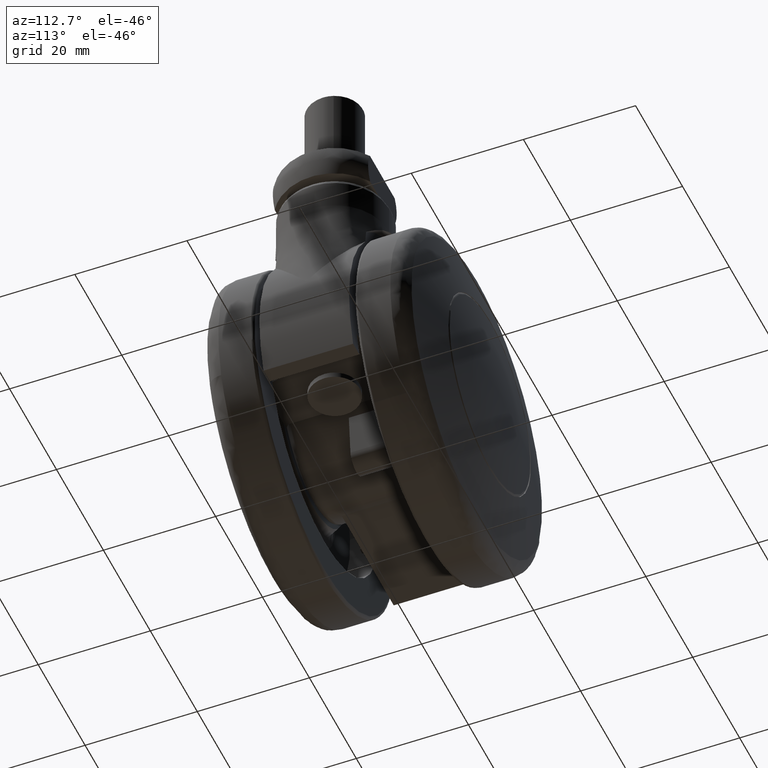
[diagram: clean part render]
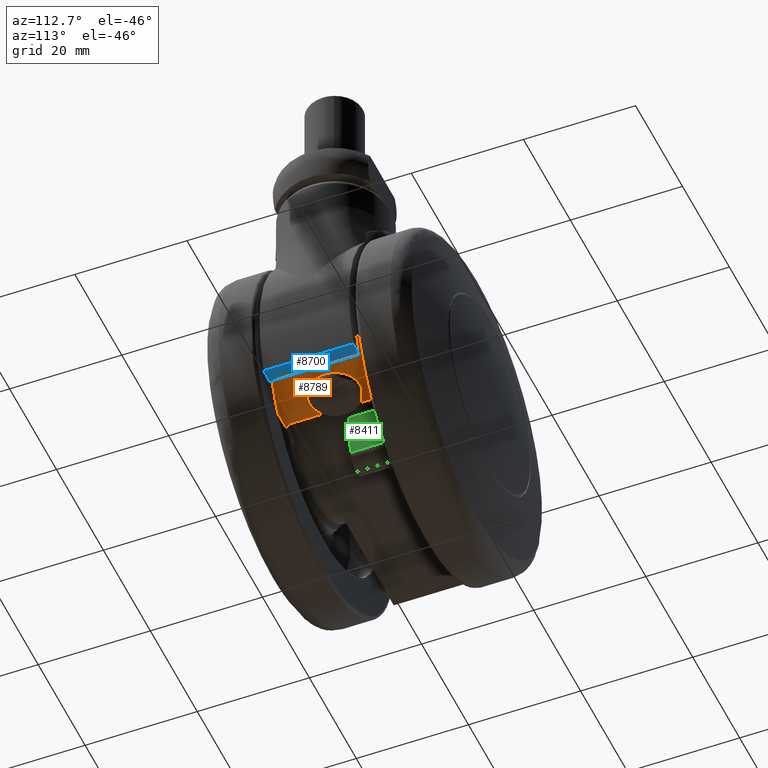
[diagram: same view with three faces highlighted in distinct colors, each labeled with its STEP entity id]
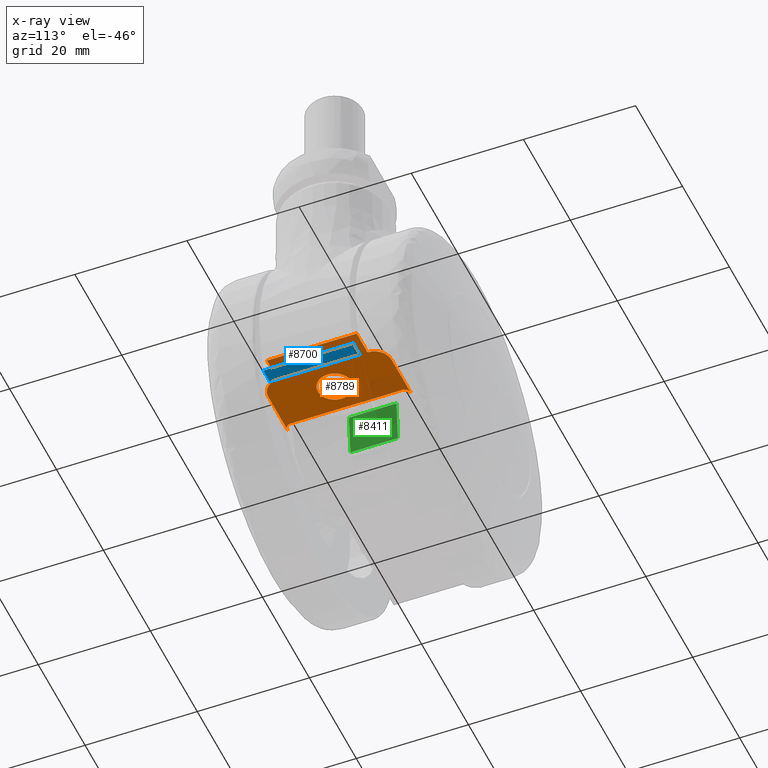
[diagram: x-ray of the same camera — body ghosted, the three highlighted faces saturated]
A machine part, auxiliary view with three faces highlighted in distinct colors.
The next image is the same camera in x-ray (body ghosted, the three faces saturated) — at least one of them is partly hidden behind the body in this view.
Their STEP definitions:

[orange] entity #8789 — the highlighted face is a freeform B-spline surface patch.
#4881=CARTESIAN_POINT('',(16.627615993738420,-2.976798641473852,-6.184658438426480));
#4882=VERTEX_POINT('',#4881);
#4883=CARTESIAN_POINT('',(14.0,0.0,-6.184658438426480));
#4884=VERTEX_POINT('',#4883);
#4885=CARTESIAN_POINT('',(16.627615993738420,-2.976798641473852,-6.184658438426480));
#4886=CARTESIAN_POINT('',(14.000000000000005,-2.648095800411068,-6.184658438426478));
#4887=CARTESIAN_POINT('',(14.0,0.0,-6.184658438426480));
#4895=(BOUNDED_CURVE()B_SPLINE_CURVE(2,(#4885,#4886,#4887),.UNSPECIFIED.,.F.,.U.)B_SPLINE_CURVE_WITH_KNOTS((3,3),(0.771473928973205,1.0),.UNSPECIFIED.)CURVE()GEOMETRIC_REPRESENTATION_ITEM()RATIONAL_B_SPLINE_CURVE((0.954005430269860,0.732265053896681,1.0))REPRESENTATION_ITEM(''));
#4896=EDGE_CURVE('',#4882,#4884,#4895,.T.);
#4898=CARTESIAN_POINT('',(17.026179606906911,2.999885769188920,-6.184658438426480));
#4899=VERTEX_POINT('',#4898);
#4900=CARTESIAN_POINT('',(14.0,0.0,-6.184658438426480));
#4901=CARTESIAN_POINT('',(13.999999999999998,3.0,-6.184658438426479));
#4902=CARTESIAN_POINT('',(17.0,3.0,-6.184658438426480));
#4903=CARTESIAN_POINT('',(17.013090052873913,3.000000000000000,-6.184658438426480));
#4904=CARTESIAN_POINT('',(17.026179606906915,2.999885769188920,-6.184658438426480));
#4912=(BOUNDED_CURVE()B_SPLINE_CURVE(2,(#4900,#4901,#4902,#4903,#4904),.UNSPECIFIED.,.F.,.U.)B_SPLINE_CURVE_WITH_KNOTS((3,2,3),(0.0,0.250000000000000,0.251539894383345),.UNSPECIFIED.)CURVE()GEOMETRIC_REPRESENTATION_ITEM()RATIONAL_B_SPLINE_CURVE((1.0,0.707106781186548,1.0,0.998195901509718,0.996414027988493))REPRESENTATION_ITEM(''));
#4913=EDGE_CURVE('',#4884,#4899,#4912,.T.);
#4984=CARTESIAN_POINT('',(20.0,0.0,-6.184658438426480));
#4985=VERTEX_POINT('',#4984);
#4986=CARTESIAN_POINT('',(20.0,0.0,-6.184658438426480));
#4987=CARTESIAN_POINT('',(19.999999999999996,-3.0,-6.184658438426479));
#4988=CARTESIAN_POINT('',(17.0,-3.0,-6.184658438426480));
#4989=CARTESIAN_POINT('',(16.813085217377164,-3.0,-6.184658438426479));
#4990=CARTESIAN_POINT('',(16.627615993738413,-2.976798641473852,-6.184658438426480));
#4998=(BOUNDED_CURVE()B_SPLINE_CURVE(2,(#4986,#4987,#4988,#4989,#4990),.UNSPECIFIED.,.F.,.U.)B_SPLINE_CURVE_WITH_KNOTS((3,2,3),(0.500000000000000,0.750000000000000,0.771473928973205),.UNSPECIFIED.)CURVE()GEOMETRIC_REPRESENTATION_ITEM()RATIONAL_B_SPLINE_CURVE((1.0,0.707106781186548,1.0,0.974841727289866,0.954005430269860))REPRESENTATION_ITEM(''));
#4999=EDGE_CURVE('',#4985,#4882,#4998,.T.);
#5033=CARTESIAN_POINT('',(17.026179606906911,2.999885769188921,-6.184658438426480));
#5034=CARTESIAN_POINT('',(20.000000000000011,2.973933630968455,-6.184658438426480));
#5035=CARTESIAN_POINT('',(20.0,0.0,-6.184658438426480));
#5043=(BOUNDED_CURVE()B_SPLINE_CURVE(2,(#5033,#5034,#5035),.UNSPECIFIED.,.F.,.U.)B_SPLINE_CURVE_WITH_KNOTS((3,3),(0.251539894383345,0.500000000000000),.UNSPECIFIED.)CURVE()GEOMETRIC_REPRESENTATION_ITEM()RATIONAL_B_SPLINE_CURVE((0.996414027988493,0.708910879676830,1.0))REPRESENTATION_ITEM(''));
#5044=EDGE_CURVE('',#4899,#4985,#5043,.T.);
#7303=CARTESIAN_POINT('',(19.019726653608348,11.0,-6.184658438426480));
#7304=VERTEX_POINT('',#7303);
#7305=CARTESIAN_POINT('',(22.152877968216149,7.999999999999830,-6.184658438426480));
#7306=VERTEX_POINT('',#7305);
#7307=CARTESIAN_POINT('',(19.019726653608348,11.0,-6.184658438426480));
#7308=CARTESIAN_POINT('',(19.222261474939380,11.0,-6.184658438426482));
#7309=CARTESIAN_POINT('',(19.421705478069860,10.981619420149791,-6.184658438426480));
#7310=CARTESIAN_POINT('',(19.716363794227330,10.927242079161710,-6.184658438426481));
#7311=CARTESIAN_POINT('',(19.813826857519221,10.904618260437500,-6.184658438426481));
#7312=CARTESIAN_POINT('',(19.958856457193090,10.863754500003370,-6.184658438426480));
#7313=CARTESIAN_POINT('',(20.007005162848039,10.848976621771110,-6.184658438426481));
#7314=CARTESIAN_POINT('',(20.102904248293129,10.817052087886159,-6.184658438426481));
#7315=CARTESIAN_POINT('',(20.150613468237321,10.799910758452761,-6.184658438426480));
#7316=CARTESIAN_POINT('',(20.385608308858352,10.709176801796930,-6.184658438426481));
#7317=CARTESIAN_POINT('',(20.564367654076221,10.619988890265949,-6.184658438426479));
#7318=CARTESIAN_POINT('',(20.818677148579500,10.461351316932570,-6.184658438426481));
#7319=CARTESIAN_POINT('',(20.901126877232830,10.404302221117529,-6.184658438426481));
#7320=CARTESIAN_POINT('',(21.021175885431390,10.312212339095829,-6.184658438426480));
#7321=CARTESIAN_POINT('',(21.060690808621079,10.280334606906580,-6.184658438426480));
#7322=CARTESIAN_POINT('',(21.137709467598750,10.214998500674360,-6.184658438426481));
#7323=CARTESIAN_POINT('',(21.175266945967099,10.181508278039271,-6.184658438426480));
#7324=CARTESIAN_POINT('',(21.358357877129851,10.010000556919330,-6.184658438426480));
#7325=CARTESIAN_POINT('',(21.489936294693031,9.859929277799624,-6.184658438426479));
#7326=CARTESIAN_POINT('',(21.635441455050429,9.655956526762298,-6.184658438426479));
#7327=CARTESIAN_POINT('',(21.663585584094751,9.614335443408395,-6.184658438426480));
#7328=CARTESIAN_POINT('',(21.717915425777811,9.529401677836585,-6.184658438426481));
#7329=CARTESIAN_POINT('',(21.744175227424190,9.485953927200356,-6.184658438426480));
#7330=CARTESIAN_POINT('',(21.819256010028671,9.354198866863424,-6.184658438426479));
#7331=CARTESIAN_POINT('',(21.864417891814750,9.264514106099519,-6.184658438426481));
#7332=CARTESIAN_POINT('',(21.985577930215801,8.990048000831662,-6.184658438426480));
#7333=CARTESIAN_POINT('',(22.047396938842301,8.799910161549139,-6.184658438426481));
#7334=CARTESIAN_POINT('',(22.099965273864939,8.552904827471229,-6.184658438426481));
#7335=CARTESIAN_POINT('',(22.109237127430561,8.502962793972349,-6.184658438426482));
#7336=CARTESIAN_POINT('',(22.125086691368800,8.403035458266366,-6.184658438426478));
#7337=CARTESIAN_POINT('',(22.131689921024869,8.352948341704956,-6.184658438426478));
#7338=CARTESIAN_POINT('',(22.147553473222821,8.202318375899573,-6.184658438426480));
#7339=CARTESIAN_POINT('',(22.152877968216160,8.101407873538564,-6.184658438426482));
#7340=CARTESIAN_POINT('',(22.152877968216149,7.999999999999830,-6.184658438426480));
#7341=B_SPLINE_CURVE_WITH_KNOTS('',3,(#7307,#7308,#7309,#7310,#7311,#7312,#7313,#7314,#7315,#7316,#7317,#7318,#7319,#7320,#7321,#7322,#7323,#7324,#7325,#7326,#7327,#7328,#7329,#7330,#7331,#7332,#7333,#7334,#7335,#7336,#7337,#7338,#7339,#7340),.UNSPECIFIED.,.F.,.U.,(4,2,2,2,2,2,2,2,2,2,2,2,2,2,2,2,4),(0.0,0.125000000000001,0.187500000000002,0.218750000000001,0.250000000000000,0.374999999999997,0.437499999999995,0.468749999999994,0.499999999999993,0.624999999999994,0.656249999999994,0.687499999999995,0.749999999999995,0.874999999999998,0.906249999999998,0.937499999999999,1.0),.UNSPECIFIED.);
#7342=EDGE_CURVE('',#7304,#7306,#7341,.T.);
#7413=CARTESIAN_POINT('',(22.152877968216149,-8.0,-6.184658438426480));
#7414=VERTEX_POINT('',#7413);
#7415=CARTESIAN_POINT('',(19.019726653608348,-11.0,-6.184658438426480));
#7416=VERTEX_POINT('',#7415);
#7417=CARTESIAN_POINT('',(22.152877968216149,-8.0,-6.184658438426480));
#7418=CARTESIAN_POINT('',(22.152877968216149,-8.202645477881463,-6.184658438426481));
#7419=CARTESIAN_POINT('',(22.131781607124719,-8.401672160233529,-6.184658438426480));
#7420=CARTESIAN_POINT('',(22.069896533579861,-8.695024829354873,-6.184658438426480));
#7421=CARTESIAN_POINT('',(22.044188390263059,-8.791937683875224,-6.184658438426480));
#7422=CARTESIAN_POINT('',(21.997829119805289,-8.935969486201325,-6.184658438426478));
#7423=CARTESIAN_POINT('',(21.981024696651449,-8.983872425954681,-6.184658438426478));
#7424=CARTESIAN_POINT('',(21.945155186866369,-9.078214462194115,-6.184658438426482));
#7425=CARTESIAN_POINT('',(21.926067136639102,-9.124746375995636,-6.184658438426479));
#7426=CARTESIAN_POINT('',(21.824984536975371,-9.354279209638939,-6.184658438426477));
#7427=CARTESIAN_POINT('',(21.726227597586110,-9.527991168119767,-6.184658438426480));
#7428=CARTESIAN_POINT('',(21.551571110689480,-9.773862319300033,-6.184658438426480));
#7429=CARTESIAN_POINT('',(21.488559660375000,-9.853684790361539,-6.184658438426482));
#7430=CARTESIAN_POINT('',(21.356119199646781,-10.005184457863940,-6.184658438426479));
#7431=CARTESIAN_POINT('',(21.216905298556011,-10.149202527056760,-6.184658438426480));
#7432=CARTESIAN_POINT('',(21.064563707729349,-10.278720416713091,-6.184658438426481));
#7433=CARTESIAN_POINT('',(20.945399384580131,-10.370437562730640,-6.184658438426480));
#7434=CARTESIAN_POINT('',(20.904858491178079,-10.400104819275020,-6.184658438426482));
#7435=CARTESIAN_POINT('',(20.822122913972620,-10.457612639456070,-6.184658438426481));
#7436=CARTESIAN_POINT('',(20.779813943509829,-10.485522435008420,-6.184658438426482));
#7437=CARTESIAN_POINT('',(20.565718173097849,-10.619420555143391,-6.184658438426478));
#7438=CARTESIAN_POINT('',(20.386618918550461,-10.708606709695660,-6.184658438426480));
#7439=CARTESIAN_POINT('',(20.106850627580691,-10.816896197885191,-6.184658438426480));
#7440=CARTESIAN_POINT('',(20.011727780274779,-10.848713420980140,-6.184658438426482));
#7441=CARTESIAN_POINT('',(19.866203125077121,-10.889928058389490,-6.184658438426479));
#7442=CARTESIAN_POINT('',(19.817124359266220,-10.902598334462430,-6.184658438426481));
#7443=CARTESIAN_POINT('',(19.718803023761389,-10.925552973037689,-6.184658438426481));
#7444=CARTESIAN_POINT('',(19.669495495921471,-10.935860575928629,-6.184658438426481));
#7445=CARTESIAN_POINT('',(19.422235081077911,-10.981641801482260,-6.184658438426478));
#7446=CARTESIAN_POINT('',(19.222133320471329,-11.0,-6.184658438426479));
#7447=CARTESIAN_POINT('',(19.019726653608348,-11.0,-6.184658438426480));
#7448=B_SPLINE_CURVE_WITH_KNOTS('',3,(#7417,#7418,#7419,#7420,#7421,#7422,#7423,#7424,#7425,#7426,#7427,#7428,#7429,#7430,#7431,#7432,#7433,#7434,#7435,#7436,#7437,#7438,#7439,#7440,#7441,#7442,#7443,#7444,#7445,#7446,#7447),.UNSPECIFIED.,.F.,.U.,(4,2,2,2,2,2,2,1,2,2,2,2,2,2,2,4),(0.0,0.125000000000000,0.187499999999999,0.218749999999999,0.249999999999999,0.374999999999997,0.437499999999996,0.499999999999995,0.562499999999995,0.593749999999995,0.624999999999995,0.749999999999997,0.812499999999998,0.843749999999998,0.874999999999999,1.0),.UNSPECIFIED.);
#7449=EDGE_CURVE('',#7414,#7416,#7448,.T.);
#7547=CARTESIAN_POINT('',(10.862780491200221,11.0,-6.184658438426480));
#7548=VERTEX_POINT('',#7547);
#7566=CARTESIAN_POINT('',(12.0,10.0,-6.184658438426480));
#7567=VERTEX_POINT('',#7566);
#7568=CARTESIAN_POINT('',(12.0,10.0,-6.184658438426480));
#7569=CARTESIAN_POINT('',(12.0,10.070766424093581,-6.184658438426481));
#7570=CARTESIAN_POINT('',(11.991646831965520,10.140072858277509,-6.184658438426480));
#7571=CARTESIAN_POINT('',(11.967261777288680,10.241960406832940,-6.184658438426480));
#7572=CARTESIAN_POINT('',(11.957115685662311,10.275640586512971,-6.184658438426480));
#7573=CARTESIAN_POINT('',(11.932847750679530,10.342011889151660,-6.184658438426479));
#7574=CARTESIAN_POINT('',(11.918919750672041,10.374199228764670,-6.184658438426478));
#7575=CARTESIAN_POINT('',(11.887683366589270,10.436692851233641,-6.184658438426479));
#7576=CARTESIAN_POINT('',(11.870374138278040,10.466998664304000,-6.184658438426480));
#7577=CARTESIAN_POINT('',(11.832462431118920,10.525777720224781,-6.184658438426479));
#7578=CARTESIAN_POINT('',(11.811786088071299,10.554340578955170,-6.184658438426478));
#7579=CARTESIAN_POINT('',(11.745284759587070,10.636670061212911,-6.184658438426479));
#7580=CARTESIAN_POINT('',(11.695901204951200,10.686127759392180,-6.184658438426481));
#7581=CARTESIAN_POINT('',(11.587971155286340,10.775191928691269,-6.184658438426480));
#7582=CARTESIAN_POINT('',(11.528980269925430,10.814909996160971,-6.184658438426480));
#7583=CARTESIAN_POINT('',(11.406411074269601,10.882180380946981,-6.184658438426480));
#7584=CARTESIAN_POINT('',(11.342416249479800,10.910162266330371,-6.184658438426481));
#7585=CARTESIAN_POINT('',(11.242532096912180,10.944016884076770,-6.184658438426481));
#7586=CARTESIAN_POINT('',(11.208590994442799,10.953920165975630,-6.184658438426480));
#7587=CARTESIAN_POINT('',(11.140562938480670,10.970736591620460,-6.184658438426479));
#7588=CARTESIAN_POINT('',(11.106333579841360,10.977701641025600,-6.184658438426480));
#7589=CARTESIAN_POINT('',(11.003020808552710,10.994410030544710,-6.184658438426478));
#7590=CARTESIAN_POINT('',(10.933317682274859,11.0,-6.184658438426478));
#7591=CARTESIAN_POINT('',(10.862780491200221,11.0,-6.184658438426480));
#7592=B_SPLINE_CURVE_WITH_KNOTS('',3,(#7568,#7569,#7570,#7571,#7572,#7573,#7574,#7575,#7576,#7577,#7578,#7579,#7580,#7581,#7582,#7583,#7584,#7585,#7586,#7587,#7588,#7589,#7590,#7591),.UNSPECIFIED.,.F.,.U.,(4,2,2,2,2,2,2,2,2,2,2,4),(0.0,0.125000000000000,0.187500000000000,0.250000000000000,0.312499999999999,0.374999999999999,0.500000000000000,0.625000000000000,0.750000000000000,0.812500000000000,0.875000000000000,1.0),.UNSPECIFIED.);
#7593=EDGE_CURVE('',#7567,#7548,#7592,.T.);
#7661=CARTESIAN_POINT('',(12.0,-10.0,-6.184658438426480));
#7662=VERTEX_POINT('',#7661);
#7680=CARTESIAN_POINT('',(10.862780491200221,-11.0,-6.184658438426480));
#7681=VERTEX_POINT('',#7680);
#7682=CARTESIAN_POINT('',(10.862780491200221,-11.0,-6.184658438426480));
#7683=CARTESIAN_POINT('',(10.933447379370660,-11.0,-6.184658438426480));
#7684=CARTESIAN_POINT('',(11.003179586017280,-10.994389643849590,-6.184658438426480));
#7685=CARTESIAN_POINT('',(11.140803528951480,-10.972121645456690,-6.184658438426479));
#7686=CARTESIAN_POINT('',(11.208696252014070,-10.955469926257621,-6.184658438426479));
#7687=CARTESIAN_POINT('',(11.342480693863290,-10.910155608901780,-6.184658438426479));
#7688=CARTESIAN_POINT('',(11.406684318586370,-10.882026995570881,-6.184658438426479));
#7689=CARTESIAN_POINT('',(11.528619340397650,-10.815111503878009,-6.184658438426479));
#7690=CARTESIAN_POINT('',(11.586529567844281,-10.776279376867929,-6.184658438426480));
#7691=CARTESIAN_POINT('',(11.668253258106160,-10.708992707533060,-6.184658438426479));
#7692=CARTESIAN_POINT('',(11.694455807663360,-10.685160954078510,-6.184658438426478));
#7693=CARTESIAN_POINT('',(11.743797024357161,-10.635535892234520,-6.184658438426479));
#7694=CARTESIAN_POINT('',(11.767084306086200,-10.609623847496040,-6.184658438426480));
#7695=CARTESIAN_POINT('',(11.832724493453799,-10.528532199809529,-6.184658438426480));
#7696=CARTESIAN_POINT('',(11.871005287678379,-10.469855514942619,-6.184658438426481));
#7697=CARTESIAN_POINT('',(11.934515128339109,-10.343199226832910,-6.184658438426481));
#7698=CARTESIAN_POINT('',(11.958591140050890,-10.277595461487740,-6.184658438426481));
#7699=CARTESIAN_POINT('',(11.983171242381980,-10.175771772654979,-6.184658438426478));
#7700=CARTESIAN_POINT('',(11.989427402039000,-10.141256457389170,-6.184658438426479));
#7701=CARTESIAN_POINT('',(11.997862790405390,-10.071017640730551,-6.184658438426481));
#7702=CARTESIAN_POINT('',(12.0,-10.035498820624520,-6.184658438426479));
#7703=CARTESIAN_POINT('',(12.0,-10.0,-6.184658438426480));
#7704=B_SPLINE_CURVE_WITH_KNOTS('',3,(#7682,#7683,#7684,#7685,#7686,#7687,#7688,#7689,#7690,#7691,#7692,#7693,#7694,#7695,#7696,#7697,#7698,#7699,#7700,#7701,#7702,#7703),.UNSPECIFIED.,.F.,.U.,(4,2,2,2,2,2,2,2,2,2,4),(0.0,0.124999999999999,0.249999999999999,0.374999999999998,0.499999999999998,0.562499999999999,0.625000000000000,0.750000000000000,0.874999999999999,0.937500000000000,1.0),.UNSPECIFIED.);
#7705=EDGE_CURVE('',#7681,#7662,#7704,.T.);
#8626=CARTESIAN_POINT('',(19.019726653608348,-11.0,-6.184658438426480));
#8627=CARTESIAN_POINT('',(10.862780491200221,-11.0,-6.184658438426480));
#8628=QUASI_UNIFORM_CURVE('',1,(#8626,#8627),.UNSPECIFIED.,.F.,.U.);
#8629=EDGE_CURVE('',#7416,#7681,#8628,.T.);
#8650=CARTESIAN_POINT('',(19.019726653608348,11.0,-6.184658438426480));
#8651=CARTESIAN_POINT('',(10.862780491200221,11.0,-6.184658438426480));
#8652=QUASI_UNIFORM_CURVE('',1,(#8650,#8651),.UNSPECIFIED.,.F.,.U.);
#8653=EDGE_CURVE('',#7304,#7548,#8652,.T.);
#8716=CARTESIAN_POINT('',(26.795522013948549,-8.0,-6.184658438426480));
#8717=VERTEX_POINT('',#8716);
#8731=CARTESIAN_POINT('',(26.795522013948549,7.999999999999789,-6.184658438426480));
#8732=VERTEX_POINT('',#8731);
#8733=CARTESIAN_POINT('',(26.795522013948549,7.999999999999789,-6.184658438426480));
#8734=CARTESIAN_POINT('',(26.795522013948549,-8.0,-6.184658438426480));
#8735=QUASI_UNIFORM_CURVE('',1,(#8733,#8734),.UNSPECIFIED.,.F.,.U.);
#8736=EDGE_CURVE('',#8732,#8717,#8735,.T.);
#8754=CARTESIAN_POINT('',(27.591363169954981,-12.098899957359730,-6.184658438426480));
#8755=CARTESIAN_POINT('',(10.066939620093420,-12.098899957359730,-6.184658438426480));
#8756=CARTESIAN_POINT('',(27.591363169954981,12.098900547445711,-6.184658438426480));
#8757=CARTESIAN_POINT('',(10.066939620093420,12.098900547445711,-6.184658438426480));
#8758=B_SPLINE_SURFACE_WITH_KNOTS('',1,1,((#8754,#8756),(#8755,#8757)),.UNSPECIFIED.,.F.,.F.,.U.,(2,2),(2,2),(0.0,17.524423549861559),(0.0,24.197800504805450),.UNSPECIFIED.);
#8759=CARTESIAN_POINT('',(26.795522013948549,-8.0,-6.184658438426480));
#8760=CARTESIAN_POINT('',(22.152877968216149,-8.0,-6.184658438426480));
#8761=QUASI_UNIFORM_CURVE('',1,(#8759,#8760),.UNSPECIFIED.,.F.,.U.);
#8762=EDGE_CURVE('',#8717,#7414,#8761,.T.);
#8763=ORIENTED_EDGE('',*,*,#8762,.T.);
#8764=ORIENTED_EDGE('',*,*,#7449,.T.);
#8765=ORIENTED_EDGE('',*,*,#8629,.T.);
#8766=ORIENTED_EDGE('',*,*,#7705,.T.);
#8767=CARTESIAN_POINT('',(12.0,10.0,-6.184658438426480));
#8768=CARTESIAN_POINT('',(12.0,-10.0,-6.184658438426480));
#8769=QUASI_UNIFORM_CURVE('',1,(#8767,#8768),.UNSPECIFIED.,.F.,.U.);
#8770=EDGE_CURVE('',#7567,#7662,#8769,.T.);
#8771=ORIENTED_EDGE('',*,*,#8770,.F.);
#8772=ORIENTED_EDGE('',*,*,#7593,.T.);
#8773=ORIENTED_EDGE('',*,*,#8653,.F.);
#8774=ORIENTED_EDGE('',*,*,#7342,.T.);
#8775=CARTESIAN_POINT('',(22.152877968216149,7.999999999999830,-6.184658438426480));
#8776=CARTESIAN_POINT('',(26.795522013948549,7.999999999999789,-6.184658438426480));
#8777=QUASI_UNIFORM_CURVE('',1,(#8775,#8776),.UNSPECIFIED.,.F.,.U.);
#8778=EDGE_CURVE('',#7306,#8732,#8777,.T.);
#8779=ORIENTED_EDGE('',*,*,#8778,.T.);
#8780=ORIENTED_EDGE('',*,*,#8736,.T.);
#8781=EDGE_LOOP('',(#8763,#8764,#8765,#8766,#8771,#8772,#8773,#8774,#8779,#8780));
#8782=FACE_OUTER_BOUND('',#8781,.T.);
#8783=ORIENTED_EDGE('',*,*,#4913,.F.);
#8784=ORIENTED_EDGE('',*,*,#4896,.F.);
#8785=ORIENTED_EDGE('',*,*,#4999,.F.);
#8786=ORIENTED_EDGE('',*,*,#5044,.F.);
#8787=EDGE_LOOP('',(#8783,#8784,#8785,#8786));
#8788=FACE_BOUND('',#8787,.T.);
#8789=ADVANCED_FACE('',(#8782,#8788),#8758,.T.);

[blue] entity #8700 — the highlighted face is a freeform B-spline surface patch.
#8665=CARTESIAN_POINT('',(28.417482642788521,-8.799199968988885,-10.0));
#8666=CARTESIAN_POINT('',(25.484164875787261,-8.799199968988885,-10.0));
#8667=CARTESIAN_POINT('',(28.417482642788521,8.799200398142117,-10.0));
#8668=CARTESIAN_POINT('',(25.484164875787261,8.799200398142117,-10.0));
#8669=B_SPLINE_SURFACE_WITH_KNOTS('',1,1,((#8665,#8667),(#8666,#8668)),.UNSPECIFIED.,.F.,.F.,.U.,(2,2),(2,2),(0.0,2.933317767001256),(0.0,17.598400367130999),.UNSPECIFIED.);
#8670=CARTESIAN_POINT('',(25.617376914899001,7.999999999999789,-10.0));
#8671=VERTEX_POINT('',#8670);
#8672=CARTESIAN_POINT('',(28.284271247461898,7.999999999999789,-10.0));
#8673=VERTEX_POINT('',#8672);
#8674=CARTESIAN_POINT('',(25.617376914899001,7.999999999999789,-10.0));
#8675=CARTESIAN_POINT('',(28.284271247461898,7.999999999999789,-10.0));
#8676=QUASI_UNIFORM_CURVE('',1,(#8674,#8675),.UNSPECIFIED.,.F.,.U.);
#8677=EDGE_CURVE('',#8671,#8673,#8676,.T.);
#8678=ORIENTED_EDGE('',*,*,#8677,.T.);
#8679=CARTESIAN_POINT('',(28.284271247461898,-8.0,-10.0));
#8680=VERTEX_POINT('',#8679);
#8681=CARTESIAN_POINT('',(28.284271247461898,7.999999999999789,-10.0));
#8682=CARTESIAN_POINT('',(28.284271247461898,-8.0,-10.0));
#8683=QUASI_UNIFORM_CURVE('',1,(#8681,#8682),.UNSPECIFIED.,.F.,.U.);
#8684=EDGE_CURVE('',#8673,#8680,#8683,.T.);
#8685=ORIENTED_EDGE('',*,*,#8684,.T.);
#8686=CARTESIAN_POINT('',(25.617376914899001,-8.0,-10.0));
#8687=VERTEX_POINT('',#8686);
#8688=CARTESIAN_POINT('',(28.284271247461898,-8.0,-10.0));
#8689=CARTESIAN_POINT('',(25.617376914899001,-8.0,-10.0));
#8690=QUASI_UNIFORM_CURVE('',1,(#8688,#8689),.UNSPECIFIED.,.F.,.U.);
#8691=EDGE_CURVE('',#8680,#8687,#8690,.T.);
#8692=ORIENTED_EDGE('',*,*,#8691,.T.);
#8693=CARTESIAN_POINT('',(25.617376914899001,7.999999999999789,-10.0));
#8694=CARTESIAN_POINT('',(25.617376914899001,-8.0,-10.0));
#8695=QUASI_UNIFORM_CURVE('',1,(#8693,#8694),.UNSPECIFIED.,.F.,.U.);
#8696=EDGE_CURVE('',#8671,#8687,#8695,.T.);
#8697=ORIENTED_EDGE('',*,*,#8696,.F.);
#8698=EDGE_LOOP('',(#8678,#8685,#8692,#8697));
#8699=FACE_OUTER_BOUND('',#8698,.T.);
#8700=ADVANCED_FACE('',(#8699),#8669,.T.);

[green] entity #8411 — the highlighted face is a freeform B-spline surface patch.
#8233=CARTESIAN_POINT('',(10.335816561942920,0.0,-15.417889356869351));
#8234=VERTEX_POINT('',#8233);
#8248=CARTESIAN_POINT('',(11.0,0.0,-7.826237921249259));
#8249=VERTEX_POINT('',#8248);
#8250=CARTESIAN_POINT('',(11.0,0.0,-7.826237921249259));
#8251=CARTESIAN_POINT('',(10.335816561942920,0.0,-15.417889356869351));
#8252=QUASI_UNIFORM_CURVE('',1,(#8250,#8251),.UNSPECIFIED.,.F.,.U.);
#8253=EDGE_CURVE('',#8249,#8234,#8252,.T.);
#8329=CARTESIAN_POINT('',(11.0,8.500000000000000,-7.826237921249259));
#8330=VERTEX_POINT('',#8329);
#8344=CARTESIAN_POINT('',(10.335816561942920,8.500000000000000,-15.417889356869351));
#8345=VERTEX_POINT('',#8344);
#8346=CARTESIAN_POINT('',(11.0,8.500000000000000,-7.826237921249259));
#8347=CARTESIAN_POINT('',(10.335816561942920,8.500000000000000,-15.417889356869351));
#8348=QUASI_UNIFORM_CURVE('',1,(#8346,#8347),.UNSPECIFIED.,.F.,.U.);
#8349=EDGE_CURVE('',#8330,#8345,#8348,.T.);
#8388=CARTESIAN_POINT('',(10.335816561942920,8.500000000000000,-15.417889356869351));
#8389=CARTESIAN_POINT('',(10.335816561942920,0.0,-15.417889356869351));
#8390=QUASI_UNIFORM_CURVE('',1,(#8388,#8389),.UNSPECIFIED.,.F.,.U.);
#8391=EDGE_CURVE('',#8345,#8234,#8390,.T.);
#8396=CARTESIAN_POINT('',(10.302640577932721,-0.424574983525350,-15.797092589301741));
#8397=CARTESIAN_POINT('',(11.033175930565850,-0.424574983525350,-7.447035299688751));
#8398=CARTESIAN_POINT('',(10.302640577932721,8.924575211513114,-15.797092589301741));
#8399=CARTESIAN_POINT('',(11.033175930565850,8.924575211513114,-7.447035299688751));
#8400=B_SPLINE_SURFACE_WITH_KNOTS('',1,1,((#8396,#8398),(#8397,#8399)),.UNSPECIFIED.,.F.,.F.,.U.,(2,2),(2,2),(0.0,8.381953151936957),(0.0,9.349150195038464),.UNSPECIFIED.);
#8401=ORIENTED_EDGE('',*,*,#8253,.T.);
#8402=ORIENTED_EDGE('',*,*,#8391,.F.);
#8403=ORIENTED_EDGE('',*,*,#8349,.F.);
#8404=CARTESIAN_POINT('',(11.0,8.500000000000000,-7.826237921249259));
#8405=CARTESIAN_POINT('',(11.0,0.0,-7.826237921249259));
#8406=QUASI_UNIFORM_CURVE('',1,(#8404,#8405),.UNSPECIFIED.,.F.,.U.);
#8407=EDGE_CURVE('',#8330,#8249,#8406,.T.);
#8408=ORIENTED_EDGE('',*,*,#8407,.T.);
#8409=EDGE_LOOP('',(#8401,#8402,#8403,#8408));
#8410=FACE_OUTER_BOUND('',#8409,.T.);
#8411=ADVANCED_FACE('',(#8410),#8400,.F.);